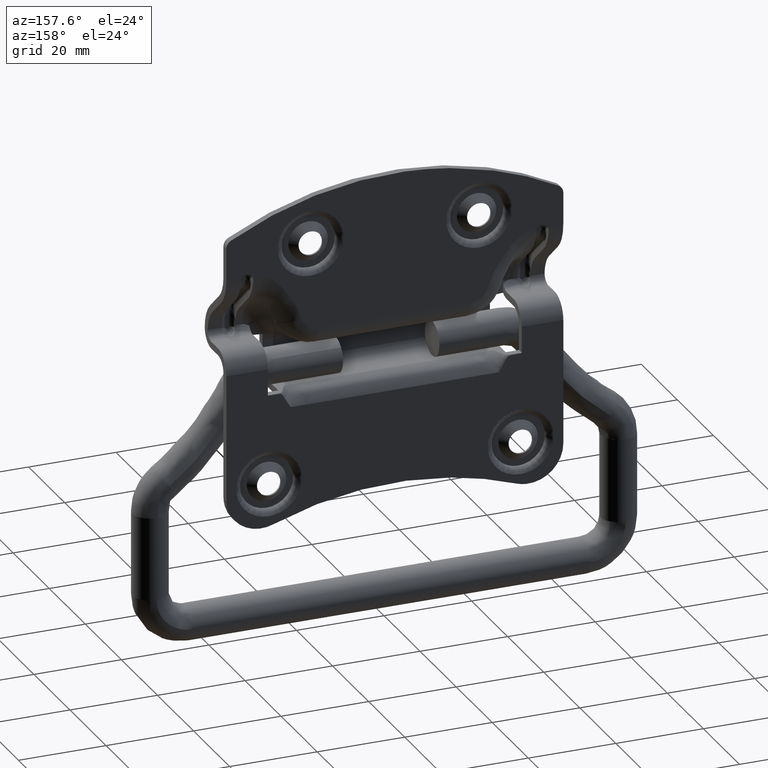
[diagram: clean part render]
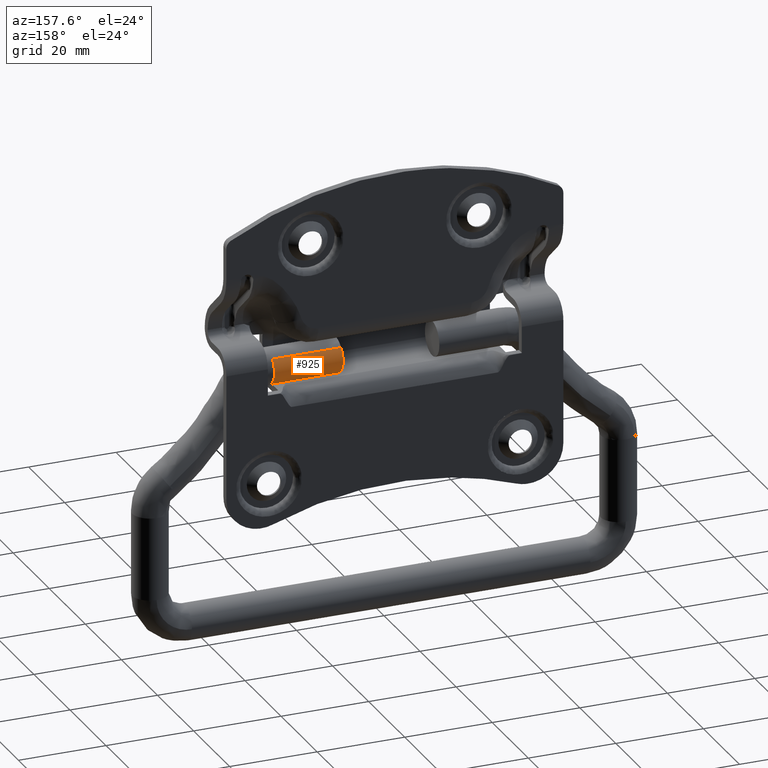
[diagram: same view with one face highlighted and labeled with its STEP entity id]
A machine part, auxiliary view. The second image highlights one B-rep face of the part: STEP entity #925.
In plain terms, the highlighted face is a freeform B-spline surface patch.
Its self-contained STEP definition (entity closure, byte-faithful):
#847=CARTESIAN_POINT('',(10.608212836023780,2.186059424367977,-3.349797634653762));
#848=CARTESIAN_POINT('',(10.608212836023782,2.480653325862108,-3.157547282554764));
#849=CARTESIAN_POINT('',(10.608212836023780,2.737170424708241,-2.916830140084009));
#850=CARTESIAN_POINT('',(10.608212836023778,5.654000564792250,-0.179659715375768));
#851=CARTESIAN_POINT('',(10.608212836023780,2.916830140084009,2.737170424708241));
#852=CARTESIAN_POINT('',(27.073068402091621,2.186059424367977,-3.349797634653762));
#853=CARTESIAN_POINT('',(27.073068402091629,2.480653325862108,-3.157547282554764));
#854=CARTESIAN_POINT('',(27.073068402091621,2.737170424708241,-2.916830140084009));
#855=CARTESIAN_POINT('',(27.073068402091629,5.654000564792250,-0.179659715375768));
#856=CARTESIAN_POINT('',(27.073068402091621,2.916830140084009,2.737170424708241));
#864=(BOUNDED_SURFACE()B_SPLINE_SURFACE(2,1,((#847,#852),(#848,#853),(#849,#854),(#850,#855),(#851,#856)),.UNSPECIFIED.,.F.,.F.,.U.)B_SPLINE_SURFACE_WITH_KNOTS((3,2,3),(2,2),(0.0,0.795290039756342,7.422707037725861),(0.0,16.464855566067840),.UNSPECIFIED.)GEOMETRIC_REPRESENTATION_ITEM()RATIONAL_B_SPLINE_SURFACE(((0.938140952186599,0.938140952186599),(0.964852813742386,0.964852813742386),(1.0,1.0),(0.707106781186548,0.707106781186548),(1.0,1.0)))REPRESENTATION_ITEM('')SURFACE());
#865=CARTESIAN_POINT('',(26.671486558670420,2.186058926160977,-3.349797232697749));
#866=VERTEX_POINT('',#865);
#867=CARTESIAN_POINT('',(26.671486558674900,3.999999999999115,0.000002660799462));
#868=VERTEX_POINT('',#867);
#869=CARTESIAN_POINT('',(26.671486558670420,2.186058926160977,-3.349797232697749));
#870=CARTESIAN_POINT('',(26.671486558670750,2.567233069835581,-3.101367635050020));
#871=CARTESIAN_POINT('',(26.671486558671450,3.089433498156038,-2.615471347255338));
#872=CARTESIAN_POINT('',(26.671486558672498,3.606468639147292,-1.787461054503356));
#873=CARTESIAN_POINT('',(26.671486558673319,3.917678483746683,-0.971880504390491));
#874=CARTESIAN_POINT('',(26.671486558674900,4.000102928592408,-0.351553016628040));
#875=CARTESIAN_POINT('',(26.671486558674900,3.999999999999115,0.000002660799462));
#876=B_SPLINE_CURVE_WITH_KNOTS('',3,(#869,#870,#871,#872,#873,#874,#875),.UNSPECIFIED.,.F.,.U.,(4,1,1,1,4),(0.000000102010744,1.364841962020230,2.109273471814293,2.915790510834638,3.970439885309586),.UNSPECIFIED.);
#877=EDGE_CURVE('',#866,#868,#876,.T.);
#878=ORIENTED_EDGE('',*,*,#877,.F.);
#879=CARTESIAN_POINT('',(10.999999999999220,2.186058928171355,-3.349797231385787));
#880=VERTEX_POINT('',#879);
#881=CARTESIAN_POINT('',(10.999999999999220,2.186058928171355,-3.349797231385787));
#882=CARTESIAN_POINT('',(26.671486558670420,2.186058926160977,-3.349797232697749));
#883=QUASI_UNIFORM_CURVE('',1,(#881,#882),.UNSPECIFIED.,.F.,.U.);
#884=EDGE_CURVE('',#880,#866,#883,.T.);
#885=ORIENTED_EDGE('',*,*,#884,.F.);
#886=CARTESIAN_POINT('',(10.999999999999220,3.999999999999115,0.000002660799462));
#887=VERTEX_POINT('',#886);
#888=CARTESIAN_POINT('',(10.999999999999220,2.186058928171355,-3.349797231385787));
#889=CARTESIAN_POINT('',(10.999999999999231,2.567246658452572,-3.101374695275685));
#890=CARTESIAN_POINT('',(10.999999999999220,3.089392389536456,-2.615451768042699));
#891=CARTESIAN_POINT('',(10.999999999999220,3.639542924943467,-1.734639852975034));
#892=CARTESIAN_POINT('',(10.999999999999231,3.932395211080141,-0.909883792928115));
#893=CARTESIAN_POINT('',(10.999999999999240,4.000036689113675,-0.289504149064446));
#894=CARTESIAN_POINT('',(10.999999999999220,3.999999999999115,0.000002660799462));
#895=B_SPLINE_CURVE_WITH_KNOTS('',3,(#888,#889,#890,#891,#892,#893,#894),.UNSPECIFIED.,.F.,.U.,(4,1,1,1,4),(0.000000102010135,1.364841961194649,2.109273470538744,3.101910380724498,3.970439882908920),.UNSPECIFIED.);
#896=EDGE_CURVE('',#880,#887,#895,.T.);
#897=ORIENTED_EDGE('',*,*,#896,.T.);
#898=CARTESIAN_POINT('',(10.999999999999220,2.916830512753043,2.737170997715626));
#899=VERTEX_POINT('',#898);
#900=CARTESIAN_POINT('',(10.999999999999220,3.999999999999115,0.000002660799462));
#901=CARTESIAN_POINT('',(10.999999999999160,4.000641353801676,0.533923889545027));
#902=CARTESIAN_POINT('',(10.999999999999361,3.795544253533724,1.538183443406326));
#903=CARTESIAN_POINT('',(10.999999999999121,3.239455719168442,2.393911711883060));
#904=CARTESIAN_POINT('',(10.999999999999220,2.916830512753043,2.737170997715626));
#905=B_SPLINE_CURVE_WITH_KNOTS('',3,(#900,#901,#902,#903,#904),.UNSPECIFIED.,.F.,.U.,(4,1,4),(0.000000057028972,1.601493169901620,3.014600088128596),.UNSPECIFIED.);
#906=EDGE_CURVE('',#887,#899,#905,.T.);
#907=ORIENTED_EDGE('',*,*,#906,.T.);
#908=CARTESIAN_POINT('',(26.671486558680080,2.916830511338775,2.737170999222722));
#909=VERTEX_POINT('',#908);
#910=CARTESIAN_POINT('',(10.999999999999220,2.916830512753043,2.737170997715626));
#911=CARTESIAN_POINT('',(26.671486558680080,2.916830511338775,2.737170999222722));
#912=QUASI_UNIFORM_CURVE('',1,(#910,#911),.UNSPECIFIED.,.F.,.U.);
#913=EDGE_CURVE('',#899,#909,#912,.T.);
#914=ORIENTED_EDGE('',*,*,#913,.T.);
#915=CARTESIAN_POINT('',(26.671486558674900,3.999999999999115,0.000002660799462));
#916=CARTESIAN_POINT('',(26.671486558675792,4.000371568058163,0.471078537550799));
#917=CARTESIAN_POINT('',(26.671486558677689,3.820306578610870,1.475613019247341));
#918=CARTESIAN_POINT('',(26.671486558679359,3.282655517774143,2.348269275381417));
#919=CARTESIAN_POINT('',(26.671486558680080,2.916830511338775,2.737170999222722));
#920=B_SPLINE_CURVE_WITH_KNOTS('',3,(#915,#916,#917,#918,#919),.UNSPECIFIED.,.F.,.U.,(4,1,4),(0.000000057028795,1.413106976250792,3.014600090195497),.UNSPECIFIED.);
#921=EDGE_CURVE('',#868,#909,#920,.T.);
#922=ORIENTED_EDGE('',*,*,#921,.F.);
#923=EDGE_LOOP('',(#878,#885,#897,#907,#914,#922));
#924=FACE_OUTER_BOUND('',#923,.T.);
#925=ADVANCED_FACE('',(#924),#864,.T.);